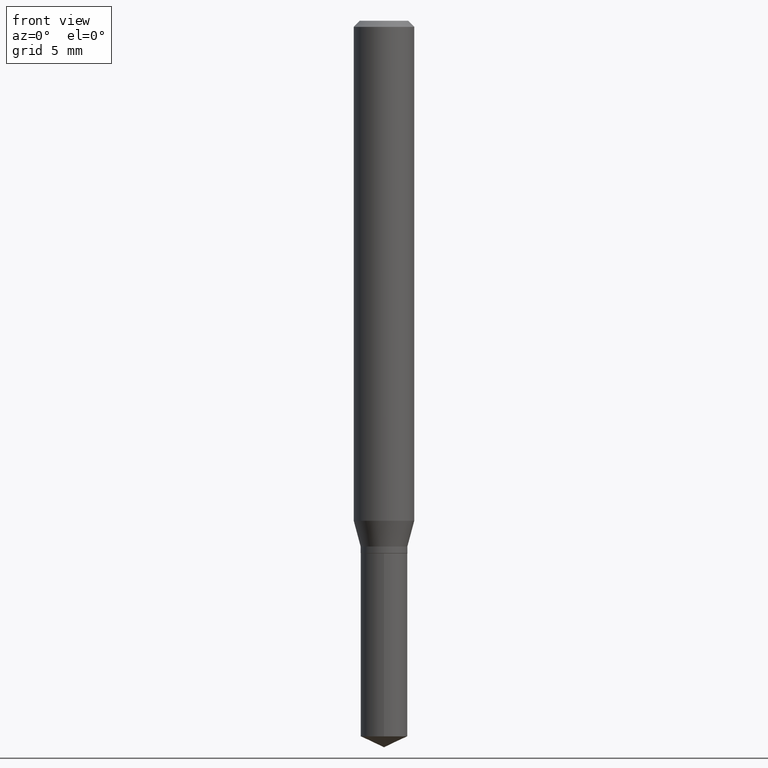
[diagram: clean part render]
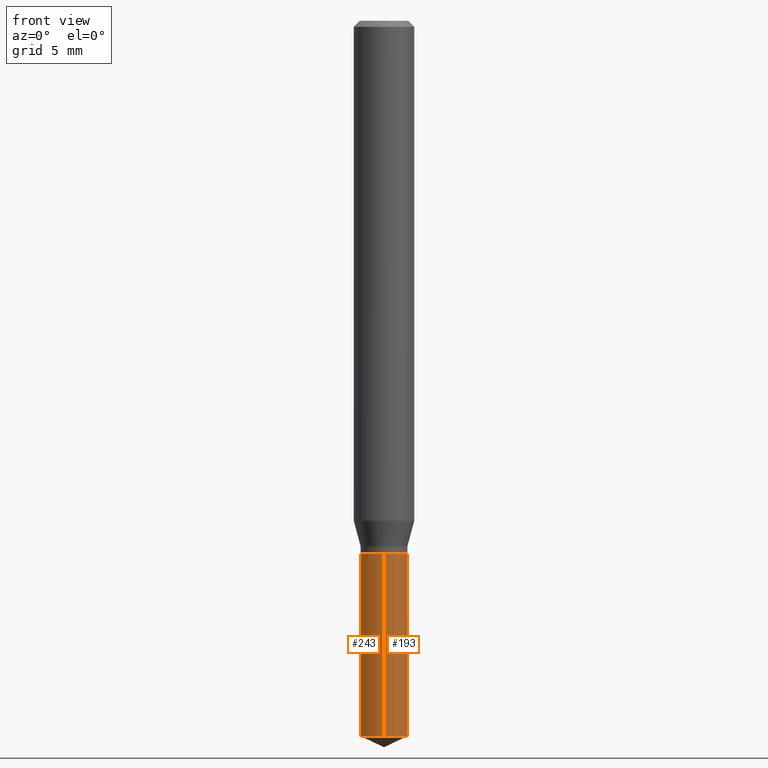
[diagram: same view with one multi-face feature highlighted, each face labeled with its STEP entity id]
A machine part, front view. The highlighted faces form ONE feature: a constant-radius fillet chain: 2 tangent blend faces with common blend radius 1.2255 mm. The faces share edges in the B-rep.
Their STEP definitions:
[1] entity #243 (Cylinder):
#22 = CARTESIAN_POINT ( 'NONE',  ( -3.369279491983354469E-16, -0.04825000000000383843, -1.099999999999999867 ) ) ;
#29 = EDGE_CURVE ( 'NONE', #382, #161, #477, .T. ) ;
#38 = DIRECTION ( 'NONE',  ( -2.445399690415121530E-29, 3.491580316559632610E-15, 1.000000000000000000 ) ) ;
#40 = VECTOR ( 'NONE', #104, 39.37007874015748143 ) ;
#41 = FACE_OUTER_BOUND ( 'NONE', #124, .T. ) ;
#59 = VERTEX_POINT ( 'NONE', #472 ) ;
#67 = DIRECTION ( 'NONE',  ( -2.445399690415121810E-29, 3.491580316559632610E-15, 1.000000000000000000 ) ) ;
#104 = DIRECTION ( 'NONE',  ( -2.445399690415121810E-29, 3.491580316559632610E-15, 1.000000000000000000 ) ) ;
#110 = DIRECTION ( 'NONE',  ( -6.982962677686266711E-15, -1.000000000000000000, 2.830930563382656003E-15 ) ) ;
#124 = EDGE_LOOP ( 'NONE', ( #163, #470, #136, #200 ) ) ;
#128 = VERTEX_POINT ( 'NONE', #176 ) ;
#131 = CIRCLE ( 'NONE', #306, 0.04825000000000000122 ) ;
#136 = ORIENTED_EDGE ( 'NONE', *, *, #29, .T. ) ;
#148 = EDGE_CURVE ( 'NONE', #59, #128, #431, .T. ) ;
#152 = AXIS2_PLACEMENT_3D ( 'NONE', #478, #442, #110 ) ;
#154 = DIRECTION ( 'NONE',  ( -2.445399690415121530E-29, 3.491580316559632610E-15, 1.000000000000000000 ) ) ;
#160 = CARTESIAN_POINT ( 'NONE',  ( -3.369279491983261778E-16, -0.04825000000000515682, -1.477500655494021320 ) ) ;
#161 = VERTEX_POINT ( 'NONE', #364 ) ;
#163 = ORIENTED_EDGE ( 'NONE', *, *, #148, .F. ) ;
#176 = CARTESIAN_POINT ( 'NONE',  ( 3.428368700042844881E-16, 0.04824999999999615707, -1.100000000000000089 ) ) ;
#177 = EDGE_CURVE ( 'NONE', #59, #382, #180, .T. ) ;
#180 = CIRCLE ( 'NONE', #325, 0.04825000000000000122 ) ;
#183 = DIRECTION ( 'NONE',  ( -6.982962677686266711E-15, -1.000000000000000000, 2.830930563382656003E-15 ) ) ;
#200 = ORIENTED_EDGE ( 'NONE', *, *, #331, .F. ) ;
#212 = VECTOR ( 'NONE', #67, 39.37007874015748143 ) ;
#213 = CARTESIAN_POINT ( 'NONE',  ( 3.428368700042751696E-16, 0.04824999999999615707, -1.100000000000000089 ) ) ;
#224 = CARTESIAN_POINT ( 'NONE',  ( 3.613155672880236860E-29, -5.158703330938744656E-15, -1.477500655494021764 ) ) ;
#243 = ADVANCED_FACE ( 'NONE', ( #41 ), #409, .T. ) ;
#306 = AXIS2_PLACEMENT_3D ( 'NONE', #401, #38, #183 ) ;
#325 = AXIS2_PLACEMENT_3D ( 'NONE', #224, #154, #484 ) ;
#331 = EDGE_CURVE ( 'NONE', #128, #161, #131, .T. ) ;
#364 = CARTESIAN_POINT ( 'NONE',  ( -3.369279491983354469E-16, -0.04825000000000383843, -1.099999999999999867 ) ) ;
#382 = VERTEX_POINT ( 'NONE', #160 ) ;
#401 = CARTESIAN_POINT ( 'NONE',  ( 2.690015686803650369E-29, -3.840629472727460101E-15, -1.100000000000000089 ) ) ;
#409 = CYLINDRICAL_SURFACE ( 'NONE', #152, 0.04825000000000000122 ) ;
#431 = LINE ( 'NONE', #213, #40 ) ;
#442 = DIRECTION ( 'NONE',  ( -2.445399690415121530E-29, 3.491580316559632610E-15, 1.000000000000000000 ) ) ;
#470 = ORIENTED_EDGE ( 'NONE', *, *, #177, .T. ) ;
#472 = CARTESIAN_POINT ( 'NONE',  ( 3.428368700042844881E-16, 0.04824999999999484562, -1.477500655494021986 ) ) ;
#477 = LINE ( 'NONE', #22, #212 ) ;
#478 = CARTESIAN_POINT ( 'NONE',  ( 2.690015686803650369E-29, -3.840629472727460101E-15, -1.100000000000000089 ) ) ;
#484 = DIRECTION ( 'NONE',  ( -6.982962677686266711E-15, -1.000000000000000000, 5.661861126765312006E-15 ) ) ;
[2] entity #193 (Cylinder):
#22 = CARTESIAN_POINT ( 'NONE',  ( -3.369279491983354469E-16, -0.04825000000000383843, -1.099999999999999867 ) ) ;
#27 = DIRECTION ( 'NONE',  ( -2.445399690415121530E-29, 3.491580316559632610E-15, 1.000000000000000000 ) ) ;
#29 = EDGE_CURVE ( 'NONE', #382, #161, #477, .T. ) ;
#40 = VECTOR ( 'NONE', #104, 39.37007874015748143 ) ;
#43 = EDGE_CURVE ( 'NONE', #161, #128, #398, .T. ) ;
#59 = VERTEX_POINT ( 'NONE', #472 ) ;
#67 = DIRECTION ( 'NONE',  ( -2.445399690415121810E-29, 3.491580316559632610E-15, 1.000000000000000000 ) ) ;
#73 = EDGE_CURVE ( 'NONE', #382, #59, #204, .T. ) ;
#104 = DIRECTION ( 'NONE',  ( -2.445399690415121810E-29, 3.491580316559632610E-15, 1.000000000000000000 ) ) ;
#107 = CARTESIAN_POINT ( 'NONE',  ( 3.613155672880236860E-29, -5.158703330938744656E-15, -1.477500655494021764 ) ) ;
#128 = VERTEX_POINT ( 'NONE', #176 ) ;
#148 = EDGE_CURVE ( 'NONE', #59, #128, #431, .T. ) ;
#160 = CARTESIAN_POINT ( 'NONE',  ( -3.369279491983261778E-16, -0.04825000000000515682, -1.477500655494021320 ) ) ;
#161 = VERTEX_POINT ( 'NONE', #364 ) ;
#176 = CARTESIAN_POINT ( 'NONE',  ( 3.428368700042844881E-16, 0.04824999999999615707, -1.100000000000000089 ) ) ;
#181 = DIRECTION ( 'NONE',  ( -6.982962677686266711E-15, -1.000000000000000000, 2.830930563382656003E-15 ) ) ;
#193 = ADVANCED_FACE ( 'NONE', ( #373 ), #489, .T. ) ;
#204 = CIRCLE ( 'NONE', #411, 0.04825000000000000122 ) ;
#212 = VECTOR ( 'NONE', #67, 39.37007874015748143 ) ;
#213 = CARTESIAN_POINT ( 'NONE',  ( 3.428368700042751696E-16, 0.04824999999999615707, -1.100000000000000089 ) ) ;
#215 = DIRECTION ( 'NONE',  ( -6.982962677686266711E-15, -1.000000000000000000, 2.830930563382656003E-15 ) ) ;
#225 = DIRECTION ( 'NONE',  ( -2.445399690415121530E-29, 3.491580316559632610E-15, 1.000000000000000000 ) ) ;
#238 = ORIENTED_EDGE ( 'NONE', *, *, #148, .T. ) ;
#276 = AXIS2_PLACEMENT_3D ( 'NONE', #358, #27, #215 ) ;
#278 = ORIENTED_EDGE ( 'NONE', *, *, #29, .F. ) ;
#327 = DIRECTION ( 'NONE',  ( -6.982962677686266711E-15, -1.000000000000000000, 5.661861126765312006E-15 ) ) ;
#358 = CARTESIAN_POINT ( 'NONE',  ( 2.690015686803650369E-29, -3.840629472727460101E-15, -1.100000000000000089 ) ) ;
#364 = CARTESIAN_POINT ( 'NONE',  ( -3.369279491983354469E-16, -0.04825000000000383843, -1.099999999999999867 ) ) ;
#372 = CARTESIAN_POINT ( 'NONE',  ( 2.690015686803650369E-29, -3.840629472727460101E-15, -1.100000000000000089 ) ) ;
#373 = FACE_OUTER_BOUND ( 'NONE', #462, .T. ) ;
#382 = VERTEX_POINT ( 'NONE', #160 ) ;
#398 = CIRCLE ( 'NONE', #276, 0.04825000000000000122 ) ;
#399 = DIRECTION ( 'NONE',  ( -2.445399690415121530E-29, 3.491580316559632610E-15, 1.000000000000000000 ) ) ;
#411 = AXIS2_PLACEMENT_3D ( 'NONE', #107, #399, #327 ) ;
#430 = ORIENTED_EDGE ( 'NONE', *, *, #43, .F. ) ;
#431 = LINE ( 'NONE', #213, #40 ) ;
#436 = ORIENTED_EDGE ( 'NONE', *, *, #73, .T. ) ;
#462 = EDGE_LOOP ( 'NONE', ( #436, #238, #430, #278 ) ) ;
#463 = AXIS2_PLACEMENT_3D ( 'NONE', #372, #225, #181 ) ;
#472 = CARTESIAN_POINT ( 'NONE',  ( 3.428368700042844881E-16, 0.04824999999999484562, -1.477500655494021986 ) ) ;
#477 = LINE ( 'NONE', #22, #212 ) ;
#489 = CYLINDRICAL_SURFACE ( 'NONE', #463, 0.04825000000000000122 ) ;